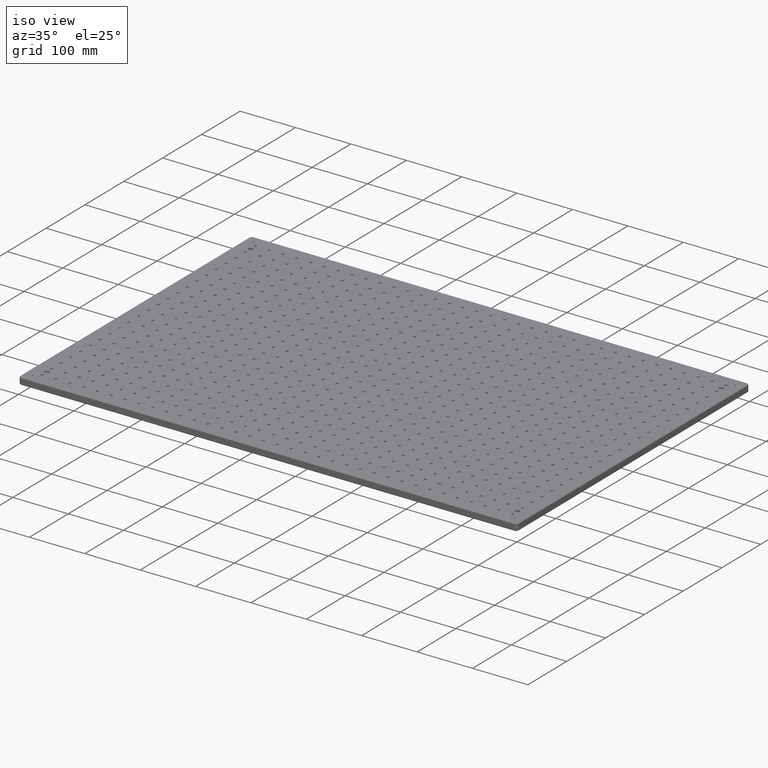
[diagram: clean part render]
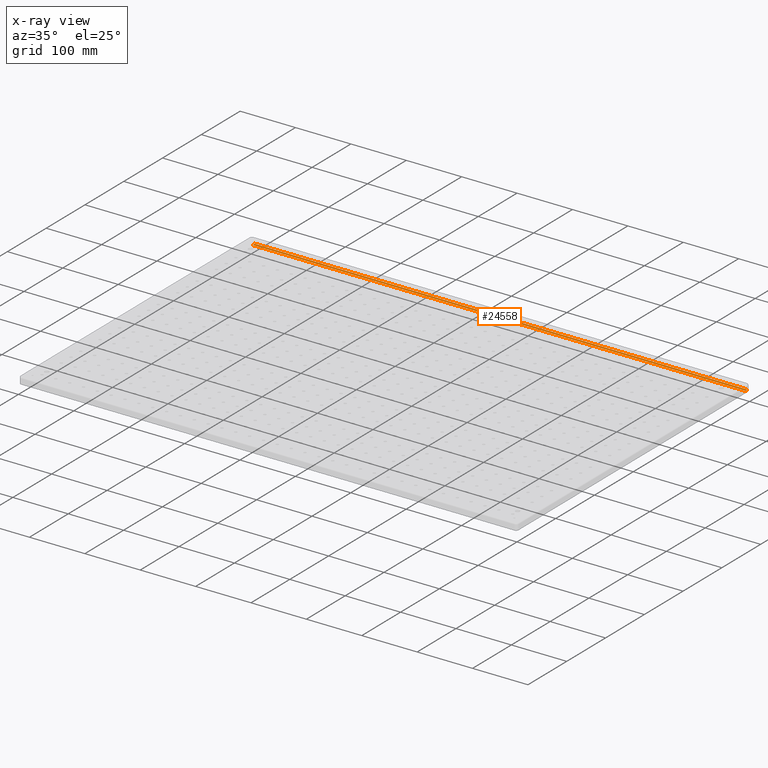
[diagram: x-ray — body ghosted, one internal face saturated and labeled with its STEP entity id]
A machine part, iso view, then the same camera in x-ray: the body is ghosted and one INTERNAL B-rep face — a face not visible from any outside direction — is saturated and labeled: STEP entity #24558.
In plain terms, the highlighted cylindrical surface (edge-blend (fillet) strip) has radius 2 mm, axis along (-1, 0, 0).
Its self-contained STEP definition (entity closure, byte-faithful):
#677 = CARTESIAN_POINT ( 'NONE',  ( 4.999999999999999100, 598.0000000000000000, -11.00000000000000000 ) ) ;
#2123 = LINE ( 'NONE', #11968, #57465 ) ;
#3127 = EDGE_LOOP ( 'NONE', ( #45429, #52112, #34609, #41516 ) ) ;
#3512 = DIRECTION ( 'NONE',  ( -1.000000000000000000, 1.233581138472396200E-016, 0.0000000000000000000 ) ) ;
#6462 = EDGE_CURVE ( 'NONE', #12179, #58480, #9340, .T. ) ;
#7327 = CARTESIAN_POINT ( 'NONE',  ( 894.9999999999998900, 597.9999999999998900, -13.00000000000000000 ) ) ;
#8575 = FACE_OUTER_BOUND ( 'NONE', #3127, .T. ) ;
#9340 = CIRCLE ( 'NONE', #56136, 2.000000000000000000 ) ;
#10424 = CARTESIAN_POINT ( 'NONE',  ( 4.999999999999999100, 600.0000000000000000, -11.00000000000000000 ) ) ;
#11968 = CARTESIAN_POINT ( 'NONE',  ( 0.0000000000000000000, 600.0000000000000000, -11.00000000000000000 ) ) ;
#12179 = VERTEX_POINT ( 'NONE', #36117 ) ;
#14950 = DIRECTION ( 'NONE',  ( 0.0000000000000000000, 0.0000000000000000000, -1.000000000000000000 ) ) ;
#21075 = DIRECTION ( 'NONE',  ( -1.000000000000000000, 1.233581138472396200E-016, 0.0000000000000000000 ) ) ;
#22454 = DIRECTION ( 'NONE',  ( 1.000000000000000000, -0.0000000000000000000, 0.0000000000000000000 ) ) ;
#24407 = CIRCLE ( 'NONE', #44084, 2.000000000000000000 ) ;
#24558 = ADVANCED_FACE ( 'NONE', ( #8575 ), #52064, .T. ) ;
#27505 = CARTESIAN_POINT ( 'NONE',  ( -2.467162276944791900E-016, 598.0000000000000000, -11.00000000000000000 ) ) ;
#27630 = DIRECTION ( 'NONE',  ( 0.0000000000000000000, 0.0000000000000000000, -1.000000000000000000 ) ) ;
#30882 = VERTEX_POINT ( 'NONE', #59299 ) ;
#33797 = VERTEX_POINT ( 'NONE', #7327 ) ;
#33996 = VECTOR ( 'NONE', #60902, 1000.000000000000000 ) ;
#34609 = ORIENTED_EDGE ( 'NONE', *, *, #58157, .F. ) ;
#36117 = CARTESIAN_POINT ( 'NONE',  ( 4.999999999999999100, 598.0000000000000000, -13.00000000000000000 ) ) ;
#41516 = ORIENTED_EDGE ( 'NONE', *, *, #51972, .F. ) ;
#41780 = DIRECTION ( 'NONE',  ( -1.233581138472395000E-016, -1.000000000000000000, 0.0000000000000000000 ) ) ;
#43122 = DIRECTION ( 'NONE',  ( 1.000000000000000000, -0.0000000000000000000, 0.0000000000000000000 ) ) ;
#44084 = AXIS2_PLACEMENT_3D ( 'NONE', #60770, #22454, #27630 ) ;
#45429 = ORIENTED_EDGE ( 'NONE', *, *, #6462, .T. ) ;
#46657 = CARTESIAN_POINT ( 'NONE',  ( 7.376815208064927900E-014, 598.0000000000000000, -13.00000000000000000 ) ) ;
#49026 = AXIS2_PLACEMENT_3D ( 'NONE', #27505, #3512, #41780 ) ;
#51972 = EDGE_CURVE ( 'NONE', #12179, #33797, #57672, .T. ) ;
#52064 = CYLINDRICAL_SURFACE ( 'NONE', #49026, 2.000000000000001800 ) ;
#52112 = ORIENTED_EDGE ( 'NONE', *, *, #59194, .F. ) ;
#56136 = AXIS2_PLACEMENT_3D ( 'NONE', #677, #43122, #14950 ) ;
#57465 = VECTOR ( 'NONE', #21075, 1000.000000000000000 ) ;
#57672 = LINE ( 'NONE', #46657, #33996 ) ;
#58157 = EDGE_CURVE ( 'NONE', #33797, #30882, #24407, .T. ) ;
#58480 = VERTEX_POINT ( 'NONE', #10424 ) ;
#59194 = EDGE_CURVE ( 'NONE', #30882, #58480, #2123, .T. ) ;
#59299 = CARTESIAN_POINT ( 'NONE',  ( 894.9999999999998900, 599.9999999999998900, -11.00000000000000000 ) ) ;
#60770 = CARTESIAN_POINT ( 'NONE',  ( 894.9999999999998900, 597.9999999999998900, -11.00000000000000000 ) ) ;
#60902 = DIRECTION ( 'NONE',  ( 1.000000000000000000, -1.233581138472396200E-016, -0.0000000000000000000 ) ) ;